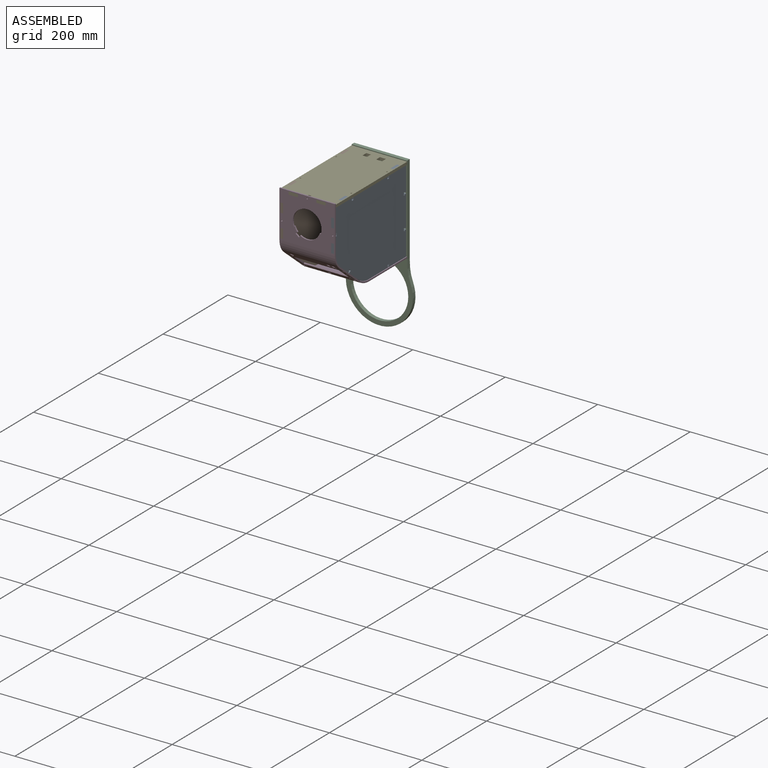
[diagram: assembled view]
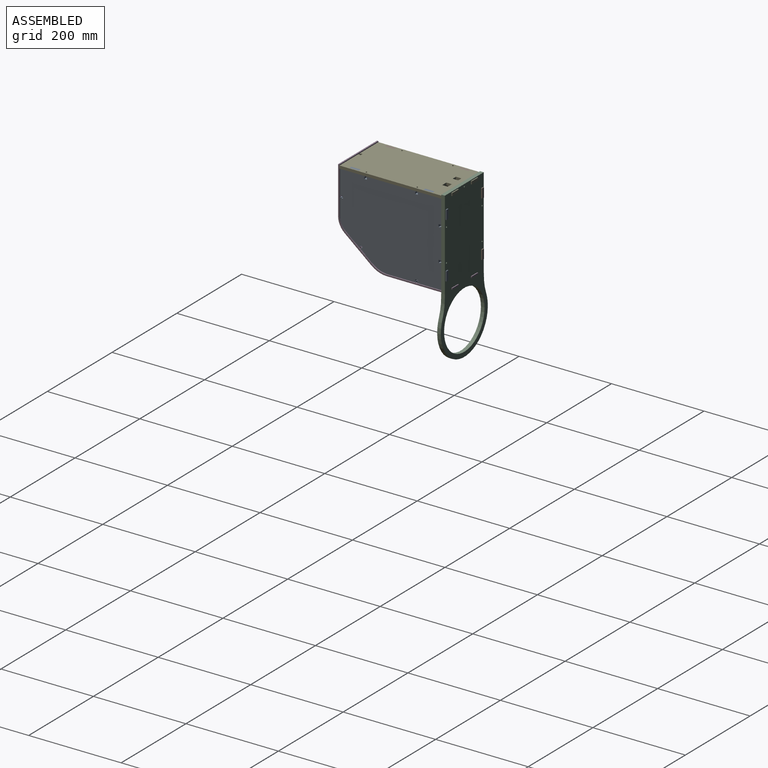
[diagram: assembled view, second angle]
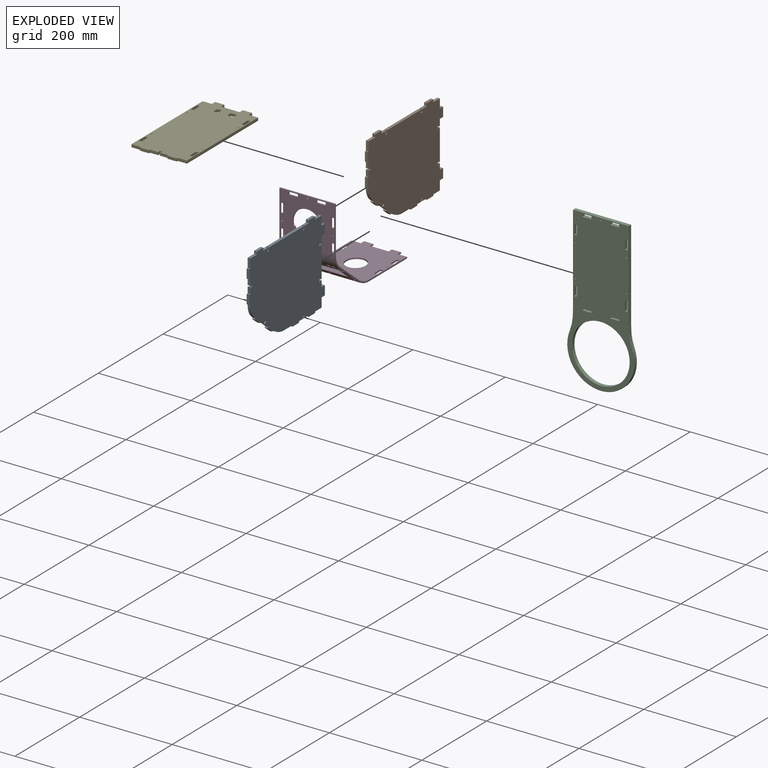
[diagram: exploded view]
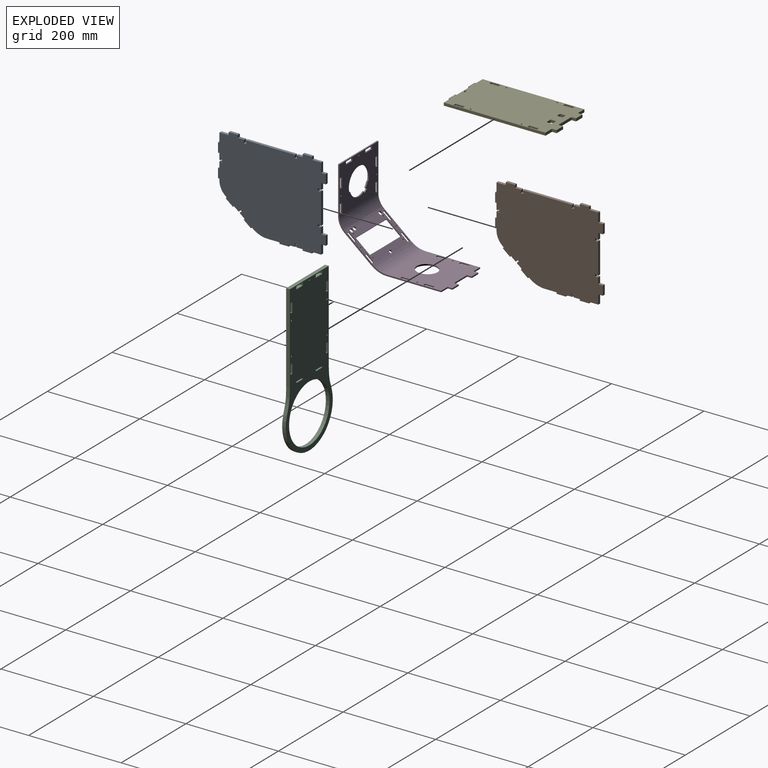
[diagram: exploded view, second angle]
ASSEMBLY  parts=5 mates=12
PART A: 105 faces, bbox 189x6x233 mm
  f0: cylinder r=35mm len=27.17mm, axis (0,1,0), area 186.7mm2, adj f1,f102,f103,f104
  f1: plane 6x3.33mm, normal (0,0,1), area 20mm2, adj f0,f2,f103,f104
  f2: plane 6x3mm, normal (1,0,0), area 18mm2, adj f1,f3,f103,f104
  f3: plane 20x6mm, normal (0,0,1), area 120mm2, adj f2,f4,f103,f104
  f4: plane 6x3mm, normal (-1,0,0), area 18mm2, adj f3,f5,f103,f104
  f5: plane 13.5x6mm, normal (0,0,1), area 81mm2, adj f4,f6,f103,f104
  f6: plane 6x2.5mm, normal (-1,0,0), area 15mm2, adj f5,f7,f103,f104
  f7: plane 6x1.25mm, normal (0,0,-1), area 7.5mm2, adj f6,f8,f103,f104
  f8: plane 6x3.5mm, normal (-1,0,0), area 21mm2, adj f7,f9,f103,f104
  f9: plane 6x5.5mm, normal (0,0,1), area 33mm2, adj f8,f10,f103,f104
  f10: plane 6x3.5mm, normal (1,0,0), area 21mm2, adj f9,f11,f103,f104
  f11: plane 6x1.25mm, normal (0,0,-1), area 7.5mm2, adj f10,f12,f103,f104
  f12: plane 6x2.5mm, normal (1,0,0), area 15mm2, adj f11,f13,f103,f104
  f13: plane 13.5x6mm, normal (0,0,1), area 81mm2, adj f12,f14,f103,f104
  f14: plane 6x3mm, normal (1,0,0), area 18mm2, adj f13,f15,f103,f104
  f15: plane 20x6mm, normal (0,0,1), area 120mm2, adj f14,f16,f103,f104
  f16: plane 6x3mm, normal (-1,0,0), area 18mm2, adj f15,f17,f103,f104
  f17: plane 20x6mm, normal (0,0,1), area 120mm2, adj f16,f18,f103,f104
  f18: plane 20x6mm, normal (-1,0,0), area 120mm2, adj f17,f19,f103,f104
  f19: plane 6x6mm, normal (0,0,1), area 36mm2, adj f18,f20,f103,f104
  f20: plane 20x6mm, normal (-1,0,0), area 120mm2, adj f19,f21,f103,f104
  f21: plane 6x6mm, normal (0,0,-1), area 36mm2, adj f20,f22,f103,f104
  f22: plane 13.5x6mm, normal (-1,0,0), area 81mm2, adj f21,f23,f103,f104
  f23: plane 6x3.5mm, normal (0,0,-1), area 21mm2, adj f22,f24,f103,f104
  f24: plane 6x1.25mm, normal (1,0,0), area 7.5mm2, adj f23,f25,f103,f104
  f25: plane 6x3.5mm, normal (0,0,-1), area 21mm2, adj f24,f26,f103,f104
  f26: plane 6x5.5mm, normal (-1,0,0), area 33mm2, adj f25,f27,f103,f104
  f27: plane 6x3.5mm, normal (0,0,1), area 21mm2, adj f26,f28,f103,f104
  f28: plane 6x1.25mm, normal (1,0,0), area 7.5mm2, adj f27,f29,f103,f104
  f29: plane 6x3.5mm, normal (0,0,1), area 21mm2, adj f28,f30,f103,f104
  f30: plane 107x6mm, normal (-1,0,0), area 642mm2, adj f29,f31,f103,f104
  f31: plane 6x3.5mm, normal (0,0,-1), area 21mm2, adj f30,f32,f103,f104
  f32: plane 6x1.25mm, normal (1,0,0), area 7.5mm2, adj f31,f33,f103,f104
  f33: plane 6x3.5mm, normal (0,0,-1), area 21mm2, adj f32,f34,f103,f104
  f34: plane 6x5.5mm, normal (-1,0,0), area 33mm2, adj f33,f35,f103,f104
  f35: plane 6x3.5mm, normal (0,0,1), area 21mm2, adj f34,f36,f103,f104
  f36: plane 6x1.25mm, normal (1,0,0), area 7.5mm2, adj f35,f37,f103,f104
  f37: plane 6x3.5mm, normal (0,0,1), area 21mm2, adj f36,f38,f103,f104
  f38: plane 13.5x6mm, normal (-1,0,0), area 81mm2, adj f37,f39,f103,f104
  f39: plane 6x6mm, normal (0,0,1), area 36mm2, adj f38,f40,f103,f104
  f40: plane 20x6mm, normal (-1,0,0), area 120mm2, adj f39,f41,f103,f104
  f41: plane 6x6mm, normal (0,0,-1), area 36mm2, adj f40,f42,f103,f104
  f42: plane 20x6mm, normal (-1,0,0), area 120mm2, adj f41,f43,f103,f104
  f43: plane 20x6mm, normal (0,0,-1), area 120mm2, adj f42,f44,f103,f104
  f44: plane 10x6mm, normal (-1,0,0), area 60mm2, adj f43,f45,f103,f104
  f45: plane 20x6mm, normal (0,0,-1), area 120mm2, adj f44,f46,f103,f104
  f46: plane 10x6mm, normal (1,0,0), area 60mm2, adj f45,f47,f103,f104
  f47: plane 13.5x6mm, normal (0,0,-1), area 81mm2, adj f46,f48,f103,f104
  f48: plane 6x3.5mm, normal (1,0,0), area 21mm2, adj f47,f49,f103,f104
  f49: plane 6x1.25mm, normal (0,0,1), area 7.5mm2, adj f48,f50,f103,f104
  f50: plane 6x3.5mm, normal (1,0,0), area 21mm2, adj f49,f51,f103,f104
  f51: plane 6x5.5mm, normal (0,0,-1), area 33mm2, adj f50,f52,f103,f104
  f52: plane 6x3.5mm, normal (-1,0,0), area 21mm2, adj f51,f53,f103,f104
  f53: plane 6x1.25mm, normal (0,0,1), area 7.5mm2, adj f52,f54,f103,f104
  f54: plane 6x3.5mm, normal (-1,0,0), area 21mm2, adj f53,f55,f103,f104
  f55: plane 67x6mm, normal (0,0,-1), area 402mm2, adj f54,f56,f103,f104
  f56: plane 6x3.5mm, normal (1,0,0), area 21mm2, adj f55,f57,f103,f104
  f57: plane 6x1.25mm, normal (0,0,1), area 7.5mm2, adj f56,f58,f103,f104
  f58: plane 6x3.5mm, normal (1,0,0), area 21mm2, adj f57,f59,f103,f104
  f59: plane 6x5.5mm, normal (0,0,-1), area 33mm2, adj f58,f60,f103,f104
  f60: plane 6x3.5mm, normal (-1,0,0), area 21mm2, adj f59,f61,f103,f104
  f61: plane 6x1.25mm, normal (0,0,1), area 7.5mm2, adj f60,f62,f103,f104
  f62: plane 6x3.5mm, normal (-1,0,0), area 21mm2, adj f61,f63,f103,f104
  f63: plane 13.5x6mm, normal (0,0,-1), area 81mm2, adj f62,f64,f103,f104
  f64: plane 10x6mm, normal (-1,0,0), area 60mm2, adj f63,f65,f103,f104
  f65: plane 20x6mm, normal (0,0,-1), area 120mm2, adj f64,f66,f103,f104
  f66: plane 10x6mm, normal (1,0,0), area 60mm2, adj f65,f67,f103,f104
  f67: plane 20x6mm, normal (0,0,-1), area 120mm2, adj f66,f68,f103,f104
  f68: plane 20x6mm, normal (1,0,0), area 120mm2, adj f67,f69,f103,f104
  f69: plane 6x3mm, normal (0,0,-1), area 18mm2, adj f68,f70,f103,f104
  f70: plane 20x6mm, normal (1,0,0), area 120mm2, adj f69,f71,f103,f104
  f71: plane 6x3mm, normal (0,0,1), area 18mm2, adj f70,f72,f103,f104
  f72: plane 13.5x6mm, normal (1,0,0), area 81mm2, adj f71,f73,f103,f104
  f73: plane 6x2.5mm, normal (0,0,1), area 15mm2, adj f72,f74,f103,f104
  f74: plane 6x1.25mm, normal (-1,0,0), area 7.5mm2, adj f73,f75,f103,f104
  f75: plane 6x3.5mm, normal (0,0,1), area 21mm2, adj f74,f76,f103,f104
  f76: plane 6x5.5mm, normal (1,0,0), area 33mm2, adj f75,f77,f103,f104
  f77: plane 6x3.5mm, normal (0,0,-1), area 21mm2, adj f76,f78,f103,f104
  f78: plane 6x1.25mm, normal (-1,0,0), area 7.5mm2, adj f77,f79,f103,f104
  f79: plane 6x2.5mm, normal (0,0,-1), area 15mm2, adj f78,f80,f103,f104
  f80: plane 13.5x6mm, normal (1,0,0), area 81mm2, adj f79,f81,f103,f104
  f81: plane 6x3mm, normal (0,0,-1), area 18mm2, adj f80,f82,f103,f104
  f82: plane 20x6mm, normal (1,0,0), area 120mm2, adj f81,f83,f103,f104
  f83: plane 6x3mm, normal (0,0,1), area 18mm2, adj f82,f84,f103,f104
  f84: plane 26.03x6mm, normal (1,0,0), area 156.2mm2, adj f83,f85,f103,f104
  f85: cylinder r=50mm len=31.51mm, axis (0,1,0), area 204.6mm2, adj f84,f86,f103,f104
  f86: plane 6x2.59mm, normal (0.78,0,0.63), area 20mm2, adj f85,f87,f103,f104
  f87: plane 6x2.33mm, normal (0.63,0,-0.78), area 18mm2, adj f86,f88,f103,f104
  f88: plane 15.53x12.6mm, normal (0.78,0,0.63), area 120mm2, adj f87,f89,f103,f104
  f89: plane 6x2.33mm, normal (-0.63,0,0.78), area 18mm2, adj f88,f90,f103,f104
  f90: plane 10.48x8.51mm, normal (0.78,0,0.63), area 81mm2, adj f89,f91,f103,f104
  f91: plane 6x1.94mm, normal (-0.63,0,0.78), area 15mm2, adj f90,f92,f103,f104
  f92: plane 6x0.97mm, normal (-0.78,0,-0.63), area 7.5mm2, adj f91,f93,f103,f104
  f93: plane 6x2.72mm, normal (-0.63,0,0.78), area 21mm2, adj f92,f94,f103,f104
  f94: plane 6x4.27mm, normal (0.78,0,0.63), area 33mm2, adj f93,f95,f103,f104
  f95: plane 6x2.72mm, normal (0.63,0,-0.78), area 21mm2, adj f94,f96,f103,f104
  f96: plane 6x0.97mm, normal (-0.78,0,-0.63), area 7.5mm2, adj f95,f97,f103,f104
  f97: plane 6x1.94mm, normal (0.63,0,-0.78), area 15mm2, adj f96,f98,f103,f104
  f98: plane 10.48x8.51mm, normal (0.78,0,0.63), area 81mm2, adj f97,f99,f103,f104
  f99: plane 6x2.33mm, normal (0.63,0,-0.78), area 18mm2, adj f98,f100,f103,f104
  f100: plane 15.53x12.6mm, normal (0.78,0,0.63), area 120mm2, adj f99,f101,f103,f104
  f101: plane 6x2.33mm, normal (-0.63,0,0.78), area 18mm2, adj f100,f102,f103,f104
  f102: plane 6x2.59mm, normal (0.78,0,0.63), area 20mm2, adj f0,f101,f103,f104
  f103: plane 233x189mm, normal (0,-1,0), area 37308.9mm2, adj f0,f1,f2,f3,f4,f5,f6,f7
  f104: plane 233x189mm, normal (0,1,0), area 37308.9mm2, adj f0,f1,f2,f3,f4,f5,f6,f7
PART B: same geometry as A
PART C: 46 faces, bbox 145x8x338 mm
  f0: plane 8x6mm, normal (0,0,-1), area 48mm2, adj f1,f30,f44,f45
  f1: plane 20x8mm, normal (-1,0,0), area 160mm2, adj f0,f2,f44,f45
  f2: plane 8x6mm, normal (0,0,1), area 48mm2, adj f1,f30,f44,f45
  f3: plane 20x8mm, normal (0,0,1), area 160mm2, adj f4,f31,f44,f45
  f4: plane 8x3mm, normal (1,0,0), area 24mm2, adj f3,f5,f44,f45
  f5: plane 20x8mm, normal (0,0,-1), area 160mm2, adj f4,f31,f44,f45
  f6: plane 8x6mm, normal (0,0,-1), area 48mm2, adj f7,f32,f44,f45
  f7: plane 20x8mm, normal (-1,0,0), area 160mm2, adj f6,f8,f44,f45
  f8: plane 8x6mm, normal (0,0,1), area 48mm2, adj f7,f32,f44,f45
  f9: plane 8x6mm, normal (-1,0,0), area 48mm2, adj f10,f33,f44,f45
  f10: plane 20x8mm, normal (0,0,1), area 160mm2, adj f9,f11,f44,f45
  f11: plane 8x6mm, normal (1,0,0), area 48mm2, adj f10,f33,f44,f45
  f12: plane 8x3mm, normal (1,0,0), area 24mm2, adj f13,f34,f44,f45
  f13: plane 20x8mm, normal (0,0,-1), area 160mm2, adj f12,f14,f44,f45
  f14: plane 8x3mm, normal (-1,0,0), area 24mm2, adj f13,f34,f44,f45
  f15: plane 8x6mm, normal (0,0,1), area 48mm2, adj f16,f35,f44,f45
  f16: plane 20x8mm, normal (1,0,0), area 160mm2, adj f15,f17,f44,f45
  f17: plane 8x6mm, normal (0,0,-1), area 48mm2, adj f16,f35,f44,f45
  f18: plane 20x8mm, normal (0,0,1), area 160mm2, adj f19,f36,f44,f45
  f19: plane 8x6mm, normal (1,0,0), area 48mm2, adj f18,f20,f44,f45
  f20: plane 20x8mm, normal (0,0,-1), area 160mm2, adj f19,f36,f44,f45
  f21: plane 8x6mm, normal (0,0,1), area 48mm2, adj f22,f37,f44,f45
  f22: plane 20x8mm, normal (1,0,0), area 160mm2, adj f21,f23,f44,f45
  f23: plane 8x6mm, normal (0,0,-1), area 48mm2, adj f22,f37,f44,f45
  f24: extruded ~52.79x9.77mm, area 432.5mm2, adj f25,f42,f44,f45
  f25: cylinder r=72.5mm len=145mm, axis (0,1,0), area 2146mm2, adj f24,f26,f44,f45
  f26: extruded ~52.26x9.62mm, area 428.2mm2, adj f25,f27,f44,f45
  f27: plane 193x8mm, normal (1,0,0), area 1544mm2, adj f26,f28,f44,f45
  f28: plane 120x8mm, normal (0,0,1), area 960mm2, adj f27,f42,f44,f45
  f29: cylinder r=1.5mm len=8mm, axis (0,1,0), area 75.4mm2, adj f44,f45
  f30: plane 20x8mm, normal (1,0,0), area 160mm2, adj f0,f2,f44,f45
  f31: plane 8x3mm, normal (-1,0,0), area 24mm2, adj f3,f5,f44,f45
  f32: plane 20x8mm, normal (1,0,0), area 160mm2, adj f6,f8,f44,f45
  f33: plane 20x8mm, normal (0,0,-1), area 160mm2, adj f9,f11,f44,f45
  f34: plane 20x8mm, normal (0,0,1), area 160mm2, adj f12,f14,f44,f45
  f35: plane 20x8mm, normal (-1,0,0), area 160mm2, adj f15,f17,f44,f45
  f36: plane 8x6mm, normal (-1,0,0), area 48mm2, adj f18,f20,f44,f45
  f37: plane 20x8mm, normal (-1,0,0), area 160mm2, adj f21,f23,f44,f45
  f38: cylinder r=1.5mm len=8mm, axis (0,1,0), area 75.4mm2, adj f44,f45
  f39: cylinder r=1.5mm len=8mm, axis (0,1,0), area 75.4mm2, adj f44,f45
  f40: cylinder r=1.5mm len=8mm, axis (0,1,0), area 75.4mm2, adj f44,f45
  f41: cylinder r=1.5mm len=8mm, axis (0,1,0), area 75.4mm2, adj f44,f45
  f42: plane 193x8mm, normal (-1,0,0), area 1544mm2, adj f24,f28,f44,f45
  f43: cylinder r=62.5mm len=125mm, axis (0,1,0), area 3141.6mm2, adj f44,f45
  f44: plane 338x145mm, normal (0,-1,0), area 27748.1mm2, adj f0,f1,f2,f3,f4,f5,f6,f7
  f45: plane 338x145mm, normal (0,1,0), area 27748.1mm2, adj f0,f1,f2,f3,f4,f5,f6,f7
PART D: 109 faces, bbox 191x120x233 mm
  f0: plane 20x3mm, normal (0,0,-1), area 60mm2, adj f2,f3,f16,f108
  f1: plane 40x3mm, normal (0,0,-1), area 120mm2, adj f2,f3,f105,f106
  f2: plane 127.19x120mm, normal (-1,0,0), area 12483.6mm2, adj f0,f1,f4,f13,f15,f16,f84,f85
  f3: plane 127.19x120mm, normal (1,0,0), area 12483.6mm2, adj f0,f1,f5,f13,f15,f16,f84,f85
  f4: cylinder r=50mm len=120mm, axis (0,1,0), area 4137.6mm2, adj f2,f6,f15,f16,f79
  f5: cylinder r=53mm len=120mm, axis (0,1,0), area 4385.9mm2, adj f3,f7,f15,f16,f79
  f6: plane 120x58.27mm, normal (-0.77,0,-0.64), area 4470.2mm2, adj f4,f12,f15,f16,f51,f52,f53,f54
  f7: plane 120x58.27mm, normal (0.77,0,0.64), area 4470.3mm2, adj f5,f14,f15,f16,f51,f52,f53,f54
  f8: plane 120x101.5mm, normal (0,0,-1), area 8562.7mm2, adj f10,f11,f12,f15,f16,f17,f18,f19
  f9: plane 120x101.5mm, normal (0,0,1), area 8562.7mm2, adj f10,f11,f14,f15,f16,f17,f18,f19
  f10: cylinder r=28.5mm len=10.27mm, axis (0,0,1), area 36.1mm2, adj f8,f9,f29,f36
  f11: plane 120x3mm, normal (-1,0,0), area 360mm2, adj f8,f9,f15,f16
  f12: cylinder r=35mm len=120mm, axis (0,1,0), area 3700.3mm2, adj f6,f8,f15,f16,f69,f71,f73
  f13: plane 20x3mm, normal (0,0,-1), area 60mm2, adj f2,f3,f15,f103
  f14: cylinder r=38mm len=120mm, axis (0,1,0), area 4017.5mm2, adj f7,f9,f15,f16,f70,f72,f74
  f15: plane 223x191mm, normal (0,-1,0), area 1085.7mm2, adj f2,f3,f4,f5,f6,f7,f8,f9
  f16: plane 223x191mm, normal (0,1,0), area 1085.7mm2, adj f0,f2,f3,f4,f5,f6,f7,f8
  f17: plane 20x3mm, normal (0,1,0), area 60mm2, adj f8,f9,f18,f20
  f18: plane 6x3mm, normal (-1,0,0), area 18mm2, adj f8,f9,f17,f19
  f19: plane 20x3mm, normal (0,-1,0), area 60mm2, adj f8,f9,f18,f20
  f20: plane 6x3mm, normal (1,0,0), area 18mm2, adj f8,f9,f17,f19
  f21: plane 6x3mm, normal (1,0,0), area 18mm2, adj f8,f9,f22,f24
  f22: plane 20x3mm, normal (0,1,0), area 60mm2, adj f8,f9,f21,f23
  f23: plane 6x3mm, normal (-1,0,0), area 18mm2, adj f8,f9,f22,f24
  f24: plane 20x3mm, normal (0,-1,0), area 60mm2, adj f8,f9,f21,f23
  f25: cylinder r=1.5mm len=3mm, axis (0,0,1), area 28.3mm2, adj f8,f9
  f26: cylinder r=28.5mm len=42.03mm, axis (0,0,1), area 153.9mm2, adj f8,f9,f27,f35
  f27: plane 3x2.37mm, normal (-0.95,0.32,0), area 7.5mm2, adj f8,f9,f26,f28
  f28: cylinder r=31mm len=62mm, axis (0,0,1), area 352.8mm2, adj f8,f9,f27,f29
  f29: plane 3x2.37mm, normal (-0.95,-0.32,0), area 7.5mm2, adj f8,f9,f10,f28
  f30: plane 20x3mm, normal (1,0,0), area 60mm2, adj f8,f9,f31,f33
  f31: plane 6x3mm, normal (0,1,0), area 18mm2, adj f8,f9,f30,f32
  f32: plane 20x3mm, normal (-1,0,0), area 60mm2, adj f8,f9,f31,f33
  f33: plane 6x3mm, normal (0,-1,0), area 18mm2, adj f8,f9,f30,f32
  f34: cylinder r=1.5mm len=3mm, axis (0,0,1), area 28.3mm2, adj f8,f9
  f35: plane 4.5x3mm, normal (-0.53,-0.85,0), area 15.9mm2, adj f8,f9,f26,f37
  f36: plane 3.88x3.61mm, normal (0.73,0.68,0), area 15.9mm2, adj f8,f9,f10,f37
  f37: plane 6.95x5.72mm, normal (-0.77,0.64,0), area 27mm2, adj f8,f9,f35,f36
  f38: plane 20x3mm, normal (0,-1,0), area 60mm2, adj f8,f9,f39,f41
  f39: plane 6x3mm, normal (1,0,0), area 18mm2, adj f8,f9,f38,f40
  f40: plane 20x3mm, normal (0,1,0), area 60mm2, adj f8,f9,f39,f41
  f41: plane 6x3mm, normal (-1,0,0), area 18mm2, adj f8,f9,f38,f40
  f42: plane 6x3mm, normal (1,0,0), area 18mm2, adj f8,f9,f43,f45
  f43: plane 20x3mm, normal (0,1,0), area 60mm2, adj f8,f9,f42,f44
  f44: plane 6x3mm, normal (-1,0,0), area 18mm2, adj f8,f9,f43,f45
  f45: plane 20x3mm, normal (0,-1,0), area 60mm2, adj f8,f9,f42,f44
  f46: cylinder r=1.5mm len=3mm, axis (0,0,1), area 28.3mm2, adj f8,f9
  f47: plane 20x3mm, normal (1,0,0), area 60mm2, adj f8,f9,f48,f50
  f48: plane 6x3mm, normal (0,1,0), area 18mm2, adj f8,f9,f47,f49
  f49: plane 20x3mm, normal (-1,0,0), area 60mm2, adj f8,f9,f48,f50
  f50: plane 6x3mm, normal (0,-1,0), area 18mm2, adj f8,f9,f47,f49
  f51: plane 17.34x15.04mm, normal (0,1,0), area 60mm2, adj f6,f7,f52,f54
  f52: plane 6x2.31mm, normal (-0.64,0,0.77), area 18mm2, adj f6,f7,f51,f53
  f53: plane 17.34x15.04mm, normal (0,-1,0), area 60mm2, adj f6,f7,f52,f54
  f54: plane 6x2.31mm, normal (0.64,0,-0.77), area 18mm2, adj f6,f7,f51,f53
  f55: plane 6x2.31mm, normal (-0.64,0,0.77), area 18mm2, adj f6,f7,f56,f58
  f56: plane 17.34x15.04mm, normal (0,-1,0), area 60mm2, adj f6,f7,f55,f57
  f57: plane 6x2.31mm, normal (0.64,0,-0.77), area 18mm2, adj f6,f7,f56,f58
  f58: plane 17.34x15.04mm, normal (0,1,0), area 60mm2, adj f6,f7,f55,f57
  f59: cylinder r=1.5mm len=4.22mm, axis (0.77,0,0.64), area 28.3mm2, adj f6,f7
  f60: plane 17.34x15.04mm, normal (0,-1,0), area 60mm2, adj f6,f7,f61,f63
  f61: plane 6x2.31mm, normal (0.64,0,-0.77), area 18mm2, adj f6,f7,f60,f62
  f62: plane 17.34x15.04mm, normal (0,1,0), area 60mm2, adj f6,f7,f61,f63
  f63: plane 6x2.31mm, normal (-0.64,0,0.77), area 18mm2, adj f6,f7,f60,f62
  f64: plane 6x2.31mm, normal (-0.64,0,0.77), area 18mm2, adj f6,f7,f65,f67
  f65: plane 17.34x15.04mm, normal (0,-1,0), area 60mm2, adj f6,f7,f64,f66
  f66: plane 6x2.31mm, normal (0.64,0,-0.77), area 18mm2, adj f6,f7,f65,f67
  f67: plane 17.34x15.04mm, normal (0,1,0), area 60mm2, adj f6,f7,f64,f66
  f68: cylinder r=1.5mm len=4.22mm, axis (0.77,0,0.64), area 28.3mm2, adj f6,f7
  f69: plane 3.87x0.39mm, normal (0.77,0,0.64), area 1.3mm2, adj f12,f70
  f70: cylinder r=4mm len=8.08mm, axis (0.77,0,0.64), area 75.4mm2, adj f6,f7,f14,f69
  f71: plane 3.87x0.39mm, normal (0.77,0,0.64), area 1.3mm2, adj f12,f72
  f72: cylinder r=4mm len=8.08mm, axis (0.77,0,0.64), area 75.4mm2, adj f6,f7,f14,f71
  f73: plane 3.87x0.39mm, normal (0.77,0,0.64), area 1.3mm2, adj f12,f74
  f74: cylinder r=4mm len=8.08mm, axis (0.77,0,0.64), area 75.4mm2, adj f6,f7,f14,f73
  f75: plane 97.2x2.31mm, normal (0.64,0,-0.77), area 291.6mm2, adj f6,f7,f76,f78
  f76: plane 32.76x27.77mm, normal (0,1,0), area 120mm2, adj f6,f7,f75,f77
  f77: plane 97.2x2.31mm, normal (-0.64,0,0.77), area 291.6mm2, adj f6,f7,f76,f78
  f78: plane 32.76x27.77mm, normal (0,-1,0), area 120mm2, adj f6,f7,f75,f77
  f79: cylinder r=3.5mm len=7.31mm, axis (0.77,0,0.64), area 66mm2, adj f4,f5,f6,f7
  f80: cylinder r=1.5mm len=4.22mm, axis (0.77,0,0.64), area 28.3mm2, adj f6,f7
  f81: cylinder r=1.5mm len=4.22mm, axis (0.77,0,0.64), area 28.3mm2, adj f6,f7
  f82: cylinder r=1.5mm len=4.22mm, axis (0.77,0,0.64), area 28.3mm2, adj f6,f7
  f83: cylinder r=1.5mm len=4.22mm, axis (0.77,0,0.64), area 28.3mm2, adj f6,f7
  f84: plane 6x3mm, normal (0,0,-1), area 18mm2, adj f2,f3,f85,f87
  f85: plane 20x3mm, normal (0,1,0), area 60mm2, adj f2,f3,f84,f86
  f86: plane 6x3mm, normal (0,0,1), area 18mm2, adj f2,f3,f85,f87
  f87: plane 20x3mm, normal (0,-1,0), area 60mm2, adj f2,f3,f84,f86
  f88: plane 20x3mm, normal (0,-1,0), area 60mm2, adj f2,f3,f89,f91
  f89: plane 6x3mm, normal (0,0,-1), area 18mm2, adj f2,f3,f88,f90
  f90: plane 20x3mm, normal (0,1,0), area 60mm2, adj f2,f3,f89,f91
  f91: plane 6x3mm, normal (0,0,1), area 18mm2, adj f2,f3,f88,f90
  f92: plane 6x3mm, normal (0,0,1), area 18mm2, adj f2,f3,f93,f95
  f93: plane 20x3mm, normal (0,-1,0), area 60mm2, adj f2,f3,f92,f94
  f94: plane 6x3mm, normal (0,0,-1), area 18mm2, adj f2,f3,f93,f95
  f95: plane 20x3mm, normal (0,1,0), area 60mm2, adj f2,f3,f92,f94
  f96: plane 6x3mm, normal (0,0,-1), area 18mm2, adj f2,f3,f97,f99
  f97: plane 20x3mm, normal (0,1,0), area 60mm2, adj f2,f3,f96,f98
  f98: plane 6x3mm, normal (0,0,1), area 18mm2, adj f2,f3,f97,f99
  f99: plane 20x3mm, normal (0,-1,0), area 60mm2, adj f2,f3,f96,f98
  f100: cylinder r=1.5mm len=3mm, axis (1,0,0), area 28.3mm2, adj f2,f3
  f101: cylinder r=1.5mm len=3mm, axis (1,0,0), area 28.3mm2, adj f2,f3
  f102: extruded ~45x42mm, area 410.1mm2, adj f2,f3
  f103: plane 10x3mm, normal (0,-1,0), area 30mm2, adj f2,f3,f13,f104
  f104: plane 20x3mm, normal (0,0,-1), area 60mm2, adj f2,f3,f103,f105
  f105: plane 10x3mm, normal (0,1,0), area 30mm2, adj f1,f2,f3,f104
  f106: plane 10x3mm, normal (0,-1,0), area 30mm2, adj f1,f2,f3,f107
  f107: plane 20x3mm, normal (0,0,-1), area 60mm2, adj f2,f3,f106,f108
  f108: plane 10x3mm, normal (0,1,0), area 30mm2, adj f0,f2,f3,f107
PART E: 58 faces, bbox 120x6x233 mm
  f0: plane 20x6mm, normal (-1,0,0), area 120mm2, adj f1,f21,f25,f26
  f1: plane 6x6mm, normal (0,0,1), area 36mm2, adj f0,f2,f25,f26
  f2: plane 20x6mm, normal (1,0,0), area 120mm2, adj f1,f21,f25,f26
  f3: plane 6x6mm, normal (0,0,1), area 36mm2, adj f4,f22,f25,f26
  f4: plane 20x6mm, normal (1,0,0), area 120mm2, adj f3,f5,f25,f26
  f5: plane 6x6mm, normal (0,0,-1), area 36mm2, adj f4,f22,f25,f26
  f6: plane 6x5.5mm, normal (0,0,1), area 33mm2, adj f7,f25,f26,f33
  f7: plane 6x3.5mm, normal (1,0,0), area 21mm2, adj f6,f8,f25,f26
  f8: plane 6x1.25mm, normal (0,0,-1), area 7.5mm2, adj f7,f9,f25,f26
  f9: plane 6x2.5mm, normal (1,0,0), area 15mm2, adj f8,f10,f25,f26
  f10: plane 18.5x6mm, normal (0,0,1), area 111mm2, adj f9,f11,f25,f26
  f11: plane 6x3mm, normal (1,0,0), area 18mm2, adj f10,f12,f25,f26
  f12: plane 20x6mm, normal (0,0,1), area 120mm2, adj f11,f13,f25,f26
  f13: plane 6x3mm, normal (-1,0,0), area 18mm2, adj f12,f14,f25,f26
  f14: plane 20x6mm, normal (0,0,1), area 120mm2, adj f13,f15,f25,f26
  f15: plane 220x6mm, normal (-1,0,0), area 1320mm2, adj f14,f16,f25,f26
  f16: plane 20x6mm, normal (0,0,-1), area 120mm2, adj f15,f17,f25,f26
  f17: plane 10x6mm, normal (-1,0,0), area 60mm2, adj f16,f18,f25,f26
  f18: plane 20x6mm, normal (0,0,-1), area 120mm2, adj f17,f19,f25,f26
  f19: plane 10x6mm, normal (1,0,0), area 60mm2, adj f18,f23,f25,f26
  f20: cylinder r=1.5mm len=6mm, axis (0,1,0), area 56.5mm2, adj f25,f26
  f21: plane 6x6mm, normal (0,0,-1), area 36mm2, adj f0,f2,f25,f26
  f22: plane 20x6mm, normal (-1,0,0), area 120mm2, adj f3,f5,f25,f26
  f23: plane 40x6mm, normal (0,0,-1), area 240mm2, adj f19,f25,f26,f45
  f24: cylinder r=1.5mm len=6mm, axis (0,1,0), area 56.5mm2, adj f25,f26
  f25: plane 233x120mm, normal (0,-1,0), area 26109mm2, adj f0,f1,f2,f3,f4,f5,f6,f7
  f26: plane 233x120mm, normal (0,1,0), area 26109mm2, adj f0,f1,f2,f3,f4,f5,f6,f7
  f27: plane 20x6mm, normal (1,0,0), area 120mm2, adj f25,f26,f28,f47
  f28: plane 6x6mm, normal (0,0,1), area 36mm2, adj f25,f26,f27,f29
  f29: plane 20x6mm, normal (-1,0,0), area 120mm2, adj f25,f26,f28,f47
  f30: plane 6x6mm, normal (0,0,1), area 36mm2, adj f25,f26,f31,f48
  f31: plane 20x6mm, normal (-1,0,0), area 120mm2, adj f25,f26,f30,f32
  f32: plane 6x6mm, normal (0,0,-1), area 36mm2, adj f25,f26,f31,f48
  f33: plane 6x3.5mm, normal (-1,0,0), area 21mm2, adj f6,f25,f26,f34
  f34: plane 6x1.25mm, normal (0,0,-1), area 7.5mm2, adj f25,f26,f33,f35
  f35: plane 6x2.5mm, normal (-1,0,0), area 15mm2, adj f25,f26,f34,f36
  f36: plane 18.5x6mm, normal (0,0,1), area 111mm2, adj f25,f26,f35,f37
  f37: plane 6x3mm, normal (-1,0,0), area 18mm2, adj f25,f26,f36,f38
  f38: plane 20x6mm, normal (0,0,1), area 120mm2, adj f25,f26,f37,f39
  f39: plane 6x3mm, normal (1,0,0), area 18mm2, adj f25,f26,f38,f40
  f40: plane 20x6mm, normal (0,0,1), area 120mm2, adj f25,f26,f39,f41
  f41: plane 220x6mm, normal (1,0,0), area 1320mm2, adj f25,f26,f40,f42
  f42: plane 20x6mm, normal (0,0,-1), area 120mm2, adj f25,f26,f41,f43
  f43: plane 10x6mm, normal (1,0,0), area 60mm2, adj f25,f26,f42,f44
  f44: plane 20x6mm, normal (0,0,-1), area 120mm2, adj f25,f26,f43,f45
  f45: plane 10x6mm, normal (-1,0,0), area 60mm2, adj f23,f25,f26,f44
  f46: cylinder r=1.5mm len=6mm, axis (0,1,0), area 56.5mm2, adj f25,f26
  f47: plane 6x6mm, normal (0,0,-1), area 36mm2, adj f25,f26,f27,f29
  f48: plane 20x6mm, normal (1,0,0), area 120mm2, adj f25,f26,f30,f32
  f49: cylinder r=1.5mm len=6mm, axis (0,1,0), area 56.5mm2, adj f25,f26
  f50: plane 12x6mm, normal (1,0,0), area 72mm2, adj f25,f26,f51,f53
  f51: plane 10x6mm, normal (0,0,1), area 60mm2, adj f25,f26,f50,f52
  f52: plane 12x6mm, normal (-1,0,0), area 72mm2, adj f25,f26,f51,f53
  f53: plane 10x6mm, normal (0,0,-1), area 60mm2, adj f25,f26,f50,f52
  f54: plane 12x6mm, normal (1,0,0), area 72mm2, adj f25,f26,f55,f57
  f55: plane 13x6mm, normal (0,0,1), area 78mm2, adj f25,f26,f54,f56
  f56: plane 12x6mm, normal (-1,0,0), area 72mm2, adj f25,f26,f55,f57
  f57: plane 13x6mm, normal (0,0,-1), area 78mm2, adj f25,f26,f54,f56
PLACE A rot(axis=(0.58,0.58,-0.58),120deg) t=(-98.93,64.2,177.71)mm
PLACE B rot(axis=(0.58,0.58,-0.58),120deg) t=(-208.93,64.2,177.71)mm
PLACE C t=(-216.93,72.2,-7.29)mm
PLACE D rot(axis=(0.58,0.58,-0.58),120deg) t=(-96.93,64.2,185.71)mm
PLACE E rot(axis=(0,-0.71,0.71),180deg) t=(-96.93,64.2,177.71)mm
MATE planar E.f26 <-> B.f30  axis (0,0,-1) through (-156.96,-45.42,177.71)mm
MATE planar A.f103 <-> C.f32  axis (-1,0,0) through (-104.93,64.2,137.71)mm
MATE planar D.f8 <-> A.f5  axis (0,1,0) through (-156.83,-155.8,136.07)mm
MATE planar E.f26 <-> A.f30  axis (0,0,-1) through (-156.96,-45.42,177.71)mm
MATE planar D.f44 <-> B.f14  axis (0,0,1) through (-211.93,-157.3,137.71)mm
MATE planar A.f21 <-> E.f3  axis (0,1,0) through (-101.93,-115.8,180.71)mm
MATE planar B.f21 <-> E.f30  axis (0,1,0) through (-211.93,-115.8,180.71)mm
MATE planar D.f45 <-> B.f104  axis (-1,0,0) through (-208.93,-157.3,147.71)mm
MATE planar E.f48 <-> B.f104  axis (-1,0,0) through (-208.93,-115.8,183.71)mm
MATE planar E.f4 <-> A.f104  axis (-1,0,0) through (-98.93,-125.8,180.71)mm
MATE planar E.f25 <-> C.f33  axis (0,0,1) through (-156.96,-45.42,183.71)mm
MATE planar E.f16 <-> C.f44  axis (0,1,0) through (-106.93,64.2,180.71)mm
